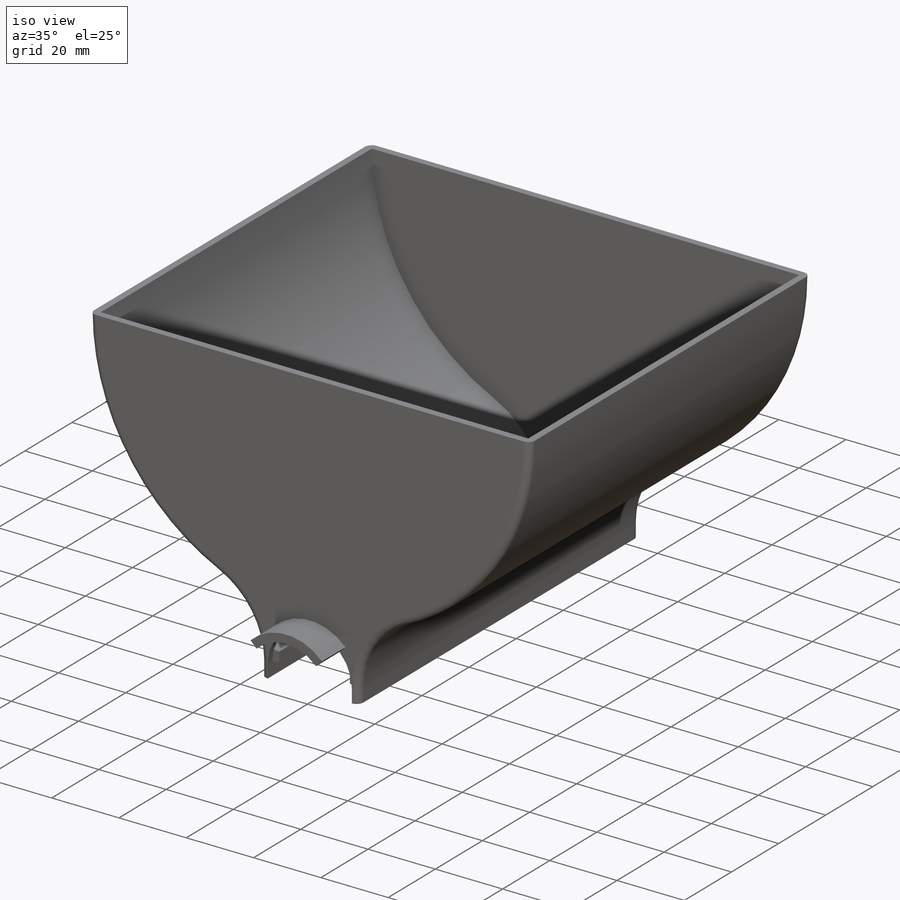
[diagram: iso view]
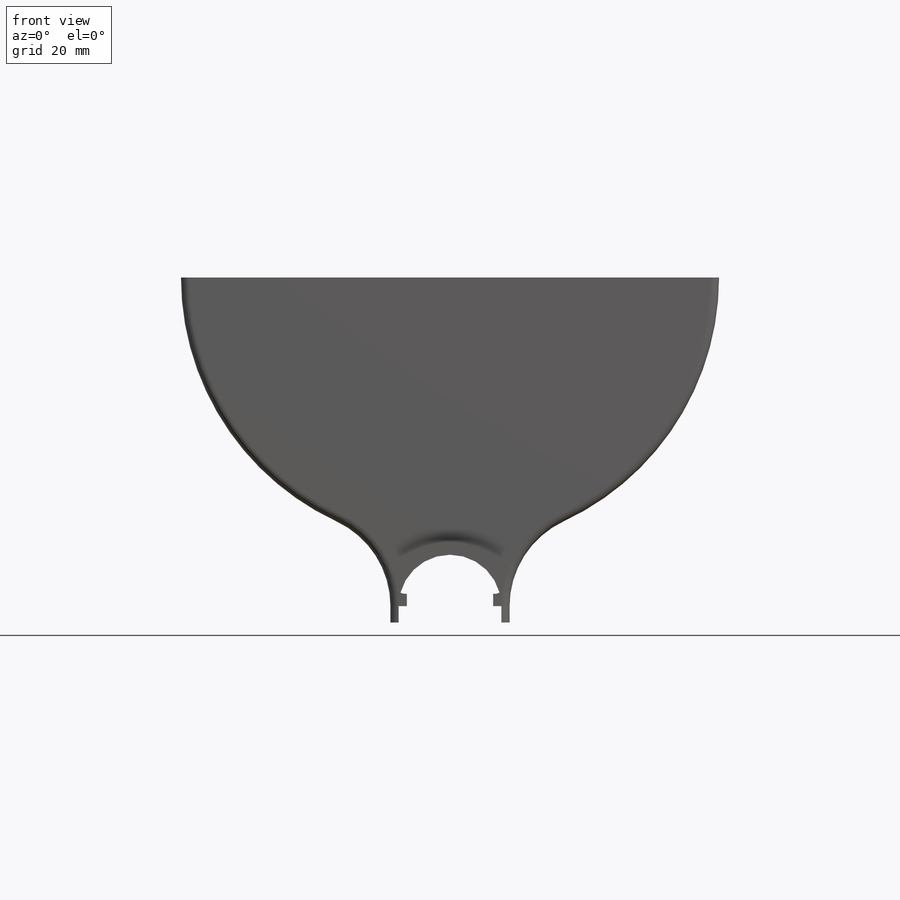
[diagram: front view]
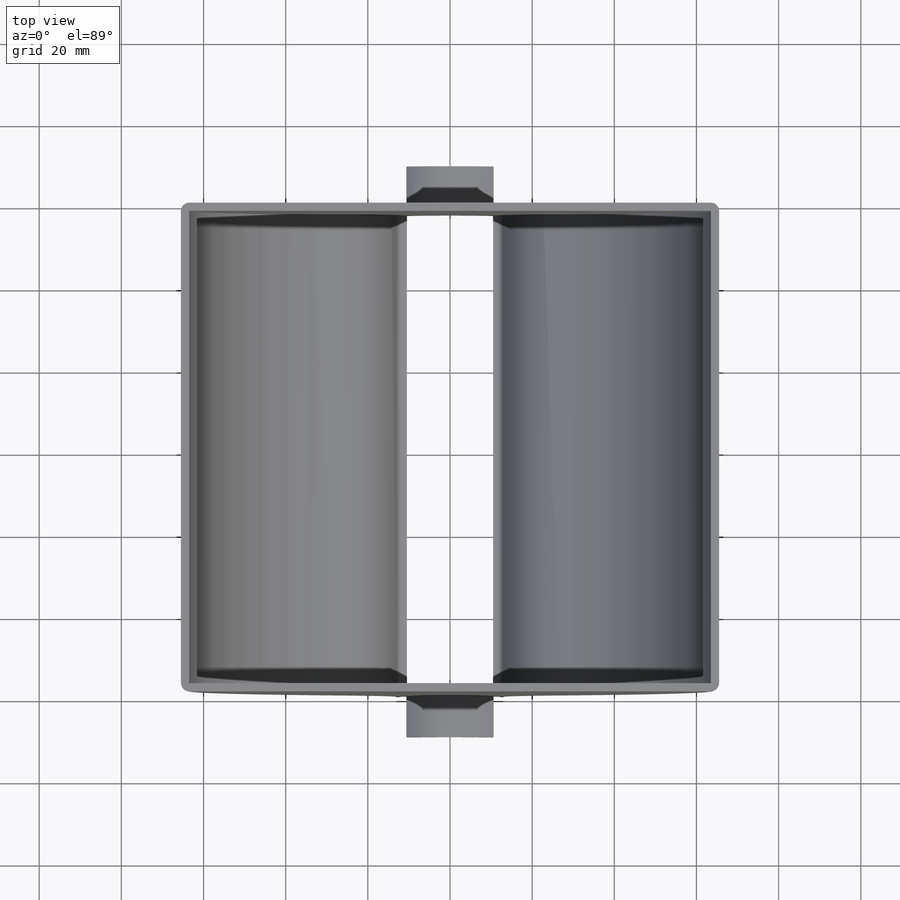
[diagram: top view]
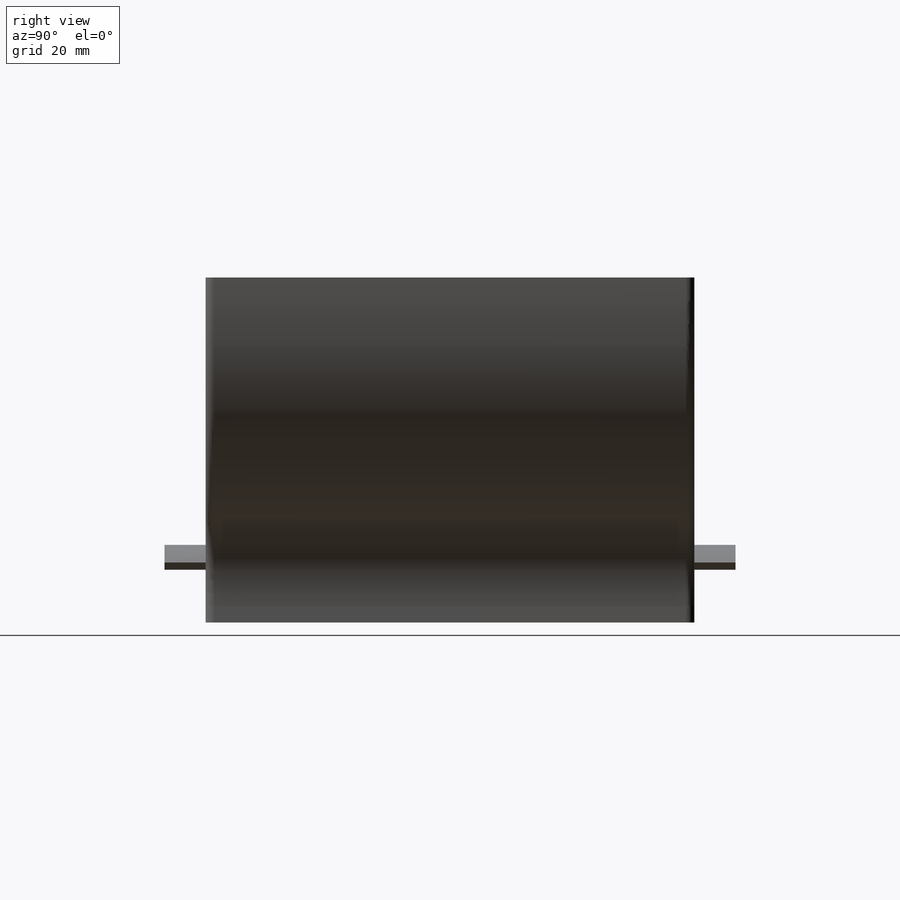
[diagram: right view]
SOLIDWORKS PART (.sldprt)
format: sldprt  version: not decoded by parser v0  size: 356,864 bytes
history: native  units: mm
features: sketch x8, extrude x5, plane x3, cut_extrude x3, material x1, fillet x1 (+13 scaffold rows collapsed)
feature tree (34):
  scaffold x13  (default folders/planes/origin — collapsed)
  material  "Gomma"
  plane  "Piano frontale"
  plane  "Piano superiore"
  plane  "Piano destro"
  sketch  "Schizzo1"  dims[c1.D1=25.0mm c1.D2=26.0mm c1.D3=~117.650969mm c1.D4=~10.014603mm c1.D7=~21.538462mm c1.D5=2.0mm c2.D2=2.0mm c2.D3=2.0mm c2.D4=2.0mm c2.D5=2.0mm c2.D6=80.0mm c2.D7=2.0mm c2.D8=2.0mm c2.D9=3.0mm c2.D10=4.0mm]
  extrude  "Estrusione-Estrusione1"  Depth=119mm
  sketch  "Schizzo2"  dims[D1=0.0mm D2=0.0mm]
  extrude  "Estrusione-Estrusione2"  Depth=2mm
  extrude  "Estrusione-Estrusione4"  [1 undecoded]
  sketch  "Schizzo2<4>"  dims[D1=2.0mm]
  fillet  "Raccordo1"  Radius=2mm
  sketch  "Schizzo3"
  cut_extrude  "Taglio-Estrusione1"  [1 undecoded]
  sketch  "Schizzo5"
  cut_extrude  "Taglio-Estrusione2"  [1 undecoded]
  sketch  "Schizzo7"
  cut_extrude  "Taglio-Estrusione3"  [1 undecoded]
  sketch  "Schizzo8"  dims[c1.D1=30.0mm c1.D2=~11.811112mm c2.D2=90.0deg]
  extrude  "Estrusione-Estrusione5"  Depth=10mm
  sketch  "Schizzo10"
  extrude  "Estrusione-Estrusione6"  Depth=10mm
decode coverage: 9 of 17 modeling features carry decoded parameters
note: ~ marks probable driven/reference dimensions
note: 4 parameter values undecoded
summary: no parameter record found for 4 features
note: suppression state not decoded; provenance and decode notes live in map.json
